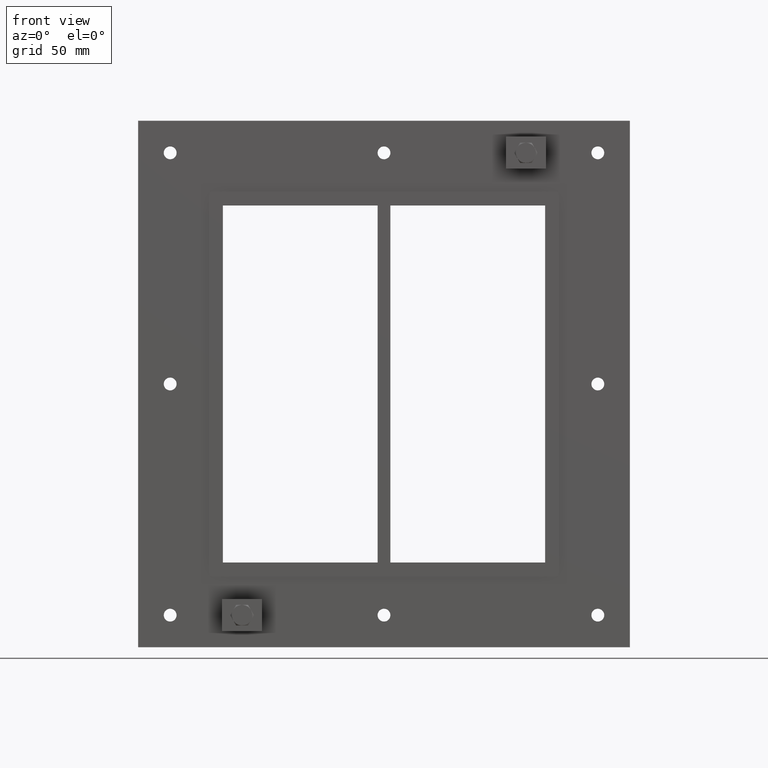
[diagram: clean part render]
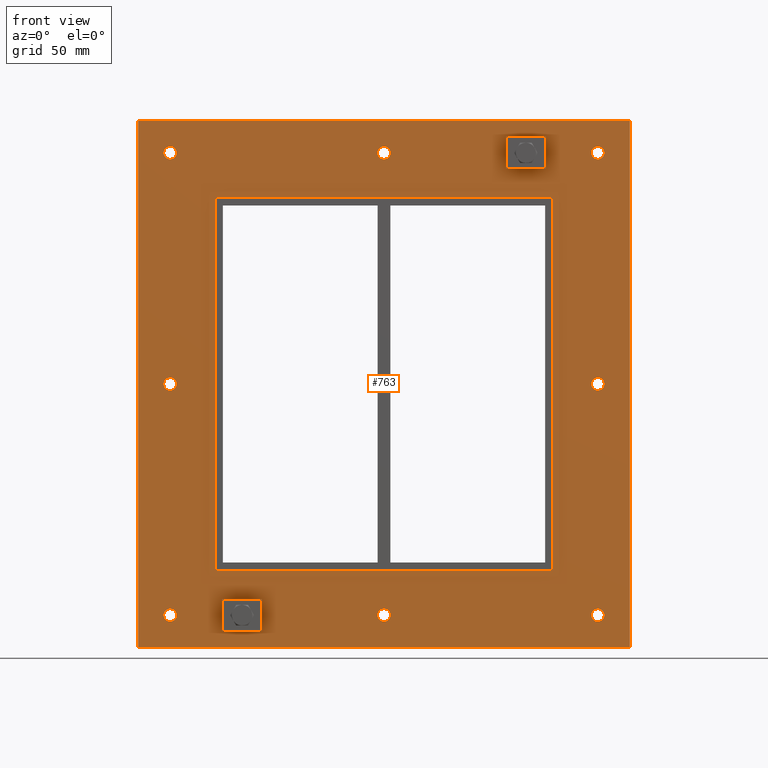
[diagram: same view with one face highlighted and labeled with its STEP entity id]
A machine part, front view. The second image highlights one B-rep face of the part: STEP entity #763.
In plain terms, the highlighted planar face has unit normal (0, 1, 0).
Its self-contained STEP definition (entity closure, byte-faithful):
#84=CARTESIAN_POINT('',(-161.5000000000002,0.0,-179.99999999999997));
#85=VERTEX_POINT('',#84);
#86=CARTESIAN_POINT('',(-166.5000000000002,0.0,-179.99999999999997));
#87=DIRECTION('',(0.0,1.0,0.0));
#88=DIRECTION('',(1.0,0.0,0.0));
#89=AXIS2_PLACEMENT_3D('',#86,#87,#88);
#90=CIRCLE('',#89,5.0);
#91=EDGE_CURVE('',#85,#85,#90,.T.);
#112=CARTESIAN_POINT('',(171.49999999999983,0.0,3.552714E-014));
#113=VERTEX_POINT('',#112);
#114=CARTESIAN_POINT('',(166.49999999999983,0.0,3.552714E-014));
#115=DIRECTION('',(0.0,1.0,0.0));
#116=DIRECTION('',(1.0,0.0,0.0));
#117=AXIS2_PLACEMENT_3D('',#114,#115,#116);
#118=CIRCLE('',#117,5.0);
#119=EDGE_CURVE('',#113,#113,#118,.T.);
#140=CARTESIAN_POINT('',(-161.5000000000002,0.0,3.552714E-014));
#141=VERTEX_POINT('',#140);
#142=CARTESIAN_POINT('',(-166.5000000000002,0.0,3.552714E-014));
#143=DIRECTION('',(0.0,1.0,0.0));
#144=DIRECTION('',(1.0,0.0,0.0));
#145=AXIS2_PLACEMENT_3D('',#142,#143,#144);
#146=CIRCLE('',#145,5.0);
#147=EDGE_CURVE('',#141,#141,#146,.T.);
#168=CARTESIAN_POINT('',(4.999999999999822,0.0,180.00000000000003));
#169=VERTEX_POINT('',#168);
#170=CARTESIAN_POINT('',(-1.776357E-013,0.0,180.00000000000003));
#171=DIRECTION('',(0.0,1.0,0.0));
#172=DIRECTION('',(1.0,0.0,0.0));
#173=AXIS2_PLACEMENT_3D('',#170,#171,#172);
#174=CIRCLE('',#173,5.0);
#175=EDGE_CURVE('',#169,#169,#174,.T.);
#196=CARTESIAN_POINT('',(4.999999999999822,0.0,-179.99999999999997));
#197=VERTEX_POINT('',#196);
#198=CARTESIAN_POINT('',(-1.776357E-013,0.0,-179.99999999999997));
#199=DIRECTION('',(0.0,1.0,0.0));
#200=DIRECTION('',(1.0,0.0,0.0));
#201=AXIS2_PLACEMENT_3D('',#198,#199,#200);
#202=CIRCLE('',#201,5.0);
#203=EDGE_CURVE('',#197,#197,#202,.T.);
#224=CARTESIAN_POINT('',(171.49999999999983,0.0,-179.99999999999997));
#225=VERTEX_POINT('',#224);
#226=CARTESIAN_POINT('',(166.49999999999983,0.0,-179.99999999999997));
#227=DIRECTION('',(0.0,1.0,0.0));
#228=DIRECTION('',(1.0,0.0,0.0));
#229=AXIS2_PLACEMENT_3D('',#226,#227,#228);
#230=CIRCLE('',#229,5.0);
#231=EDGE_CURVE('',#225,#225,#230,.T.);
#252=CARTESIAN_POINT('',(-161.5000000000002,0.0,180.00000000000003));
#253=VERTEX_POINT('',#252);
#254=CARTESIAN_POINT('',(-166.5000000000002,0.0,180.00000000000003));
#255=DIRECTION('',(0.0,1.0,0.0));
#256=DIRECTION('',(1.0,0.0,0.0));
#257=AXIS2_PLACEMENT_3D('',#254,#255,#256);
#258=CIRCLE('',#257,5.0);
#259=EDGE_CURVE('',#253,#253,#258,.T.);
#280=CARTESIAN_POINT('',(171.49999999999983,0.0,180.00000000000003));
#281=VERTEX_POINT('',#280);
#282=CARTESIAN_POINT('',(166.49999999999983,0.0,180.00000000000003));
#283=DIRECTION('',(0.0,1.0,0.0));
#284=DIRECTION('',(1.0,0.0,0.0));
#285=AXIS2_PLACEMENT_3D('',#282,#283,#284);
#286=CIRCLE('',#285,5.0);
#287=EDGE_CURVE('',#281,#281,#286,.T.);
#630=CARTESIAN_POINT('',(0.0,0.0,1.993641E-014));
#631=DIRECTION('',(0.0,1.0,0.0));
#632=DIRECTION('',(0.0,0.0,1.0));
#633=AXIS2_PLACEMENT_3D('',#630,#631,#632);
#634=PLANE('',#633);
#635=CARTESIAN_POINT('',(-191.50000000000006,0.0,205.0));
#636=VERTEX_POINT('',#635);
#637=CARTESIAN_POINT('',(191.50000000000006,0.0,205.0));
#638=VERTEX_POINT('',#637);
#639=CARTESIAN_POINT('',(-191.50000000000006,0.0,205.0));
#640=DIRECTION('',(1.0,0.0,0.0));
#641=VECTOR('',#640,383.00000000000011);
#642=LINE('',#639,#641);
#643=EDGE_CURVE('',#636,#638,#642,.T.);
#644=ORIENTED_EDGE('',*,*,#643,.F.);
#645=CARTESIAN_POINT('',(-191.50000000000006,0.0,-204.99999999999997));
#646=VERTEX_POINT('',#645);
#647=CARTESIAN_POINT('',(-191.50000000000006,0.0,-204.99999999999997));
#648=DIRECTION('',(0.0,0.0,1.0));
#649=VECTOR('',#648,410.0);
#650=LINE('',#647,#649);
#651=EDGE_CURVE('',#646,#636,#650,.T.);
#652=ORIENTED_EDGE('',*,*,#651,.F.);
#653=CARTESIAN_POINT('',(191.50000000000006,0.0,-204.99999999999997));
#654=VERTEX_POINT('',#653);
#655=CARTESIAN_POINT('',(191.50000000000006,0.0,-204.99999999999997));
#656=DIRECTION('',(-1.0,0.0,0.0));
#657=VECTOR('',#656,383.00000000000011);
#658=LINE('',#655,#657);
#659=EDGE_CURVE('',#654,#646,#658,.T.);
#660=ORIENTED_EDGE('',*,*,#659,.F.);
#661=CARTESIAN_POINT('',(191.50000000000006,0.0,205.0));
#662=DIRECTION('',(0.0,0.0,-1.0));
#663=VECTOR('',#662,410.0);
#664=LINE('',#661,#663);
#665=EDGE_CURVE('',#638,#654,#664,.T.);
#666=ORIENTED_EDGE('',*,*,#665,.F.);
#667=EDGE_LOOP('',(#644,#652,#660,#666));
#668=FACE_OUTER_BOUND('',#667,.T.);
#669=ORIENTED_EDGE('',*,*,#91,.T.);
#670=EDGE_LOOP('',(#669));
#671=FACE_BOUND('',#670,.T.);
#672=ORIENTED_EDGE('',*,*,#119,.T.);
#673=EDGE_LOOP('',(#672));
#674=FACE_BOUND('',#673,.T.);
#675=ORIENTED_EDGE('',*,*,#147,.T.);
#676=EDGE_LOOP('',(#675));
#677=FACE_BOUND('',#676,.T.);
#678=ORIENTED_EDGE('',*,*,#175,.T.);
#679=EDGE_LOOP('',(#678));
#680=FACE_BOUND('',#679,.T.);
#681=ORIENTED_EDGE('',*,*,#203,.T.);
#682=EDGE_LOOP('',(#681));
#683=FACE_BOUND('',#682,.T.);
#684=ORIENTED_EDGE('',*,*,#231,.T.);
#685=EDGE_LOOP('',(#684));
#686=FACE_BOUND('',#685,.T.);
#687=ORIENTED_EDGE('',*,*,#259,.T.);
#688=EDGE_LOOP('',(#687));
#689=FACE_BOUND('',#688,.T.);
#690=ORIENTED_EDGE('',*,*,#287,.T.);
#691=EDGE_LOOP('',(#690));
#692=FACE_BOUND('',#691,.T.);
#693=CARTESIAN_POINT('',(-129.50000000000003,0.0,145.0));
#694=VERTEX_POINT('',#693);
#695=CARTESIAN_POINT('',(-131.50000000000003,0.0,143.0));
#696=VERTEX_POINT('',#695);
#697=CARTESIAN_POINT('',(-129.50000000000003,0.0,143.0));
#698=DIRECTION('',(0.0,-1.0,0.0));
#699=DIRECTION('',(-0.707106781186548,0.0,0.707106781186548));
#700=AXIS2_PLACEMENT_3D('',#697,#698,#699);
#701=CIRCLE('',#700,2.0);
#702=EDGE_CURVE('',#694,#696,#701,.T.);
#703=ORIENTED_EDGE('',*,*,#702,.F.);
#704=CARTESIAN_POINT('',(129.5,0.0,145.0));
#705=VERTEX_POINT('',#704);
#706=CARTESIAN_POINT('',(129.5,0.0,145.0));
#707=DIRECTION('',(-1.0,0.0,0.0));
#708=VECTOR('',#707,259.0);
#709=LINE('',#706,#708);
#710=EDGE_CURVE('',#705,#694,#709,.T.);
#711=ORIENTED_EDGE('',*,*,#710,.F.);
#712=CARTESIAN_POINT('',(131.5,0.0,143.0));
#713=VERTEX_POINT('',#712);
#714=CARTESIAN_POINT('',(129.5,0.0,143.0));
#715=DIRECTION('',(0.0,-1.0,0.0));
#716=DIRECTION('',(0.707106781186548,0.0,0.707106781186548));
#717=AXIS2_PLACEMENT_3D('',#714,#715,#716);
#718=CIRCLE('',#717,2.0);
#719=EDGE_CURVE('',#713,#705,#718,.T.);
#720=ORIENTED_EDGE('',*,*,#719,.F.);
#721=CARTESIAN_POINT('',(131.5,0.0,-143.0));
#722=VERTEX_POINT('',#721);
#723=CARTESIAN_POINT('',(131.5,0.0,-143.0));
#724=DIRECTION('',(0.0,0.0,1.0));
#725=VECTOR('',#724,286.0);
#726=LINE('',#723,#725);
#727=EDGE_CURVE('',#722,#713,#726,.T.);
#728=ORIENTED_EDGE('',*,*,#727,.F.);
#729=CARTESIAN_POINT('',(129.5,0.0,-145.0));
#730=VERTEX_POINT('',#729);
#731=CARTESIAN_POINT('',(129.5,0.0,-143.0));
#732=DIRECTION('',(0.0,-1.0,0.0));
#733=DIRECTION('',(0.707106781186548,0.0,-0.707106781186548));
#734=AXIS2_PLACEMENT_3D('',#731,#732,#733);
#735=CIRCLE('',#734,2.0);
#736=EDGE_CURVE('',#730,#722,#735,.T.);
#737=ORIENTED_EDGE('',*,*,#736,.F.);
#738=CARTESIAN_POINT('',(-129.50000000000003,0.0,-145.0));
#739=VERTEX_POINT('',#738);
#740=CARTESIAN_POINT('',(-129.50000000000003,0.0,-145.0));
#741=DIRECTION('',(1.0,0.0,0.0));
#742=VECTOR('',#741,259.0);
#743=LINE('',#740,#742);
#744=EDGE_CURVE('',#739,#730,#743,.T.);
#745=ORIENTED_EDGE('',*,*,#744,.F.);
#746=CARTESIAN_POINT('',(-131.50000000000003,0.0,-143.0));
#747=VERTEX_POINT('',#746);
#748=CARTESIAN_POINT('',(-129.50000000000003,0.0,-143.0));
#749=DIRECTION('',(0.0,-1.0,0.0));
#750=DIRECTION('',(-0.707106781186548,0.0,-0.707106781186548));
#751=AXIS2_PLACEMENT_3D('',#748,#749,#750);
#752=CIRCLE('',#751,2.0);
#753=EDGE_CURVE('',#747,#739,#752,.T.);
#754=ORIENTED_EDGE('',*,*,#753,.F.);
#755=CARTESIAN_POINT('',(-131.50000000000003,0.0,143.0));
#756=DIRECTION('',(0.0,0.0,-1.0));
#757=VECTOR('',#756,286.0);
#758=LINE('',#755,#757);
#759=EDGE_CURVE('',#696,#747,#758,.T.);
#760=ORIENTED_EDGE('',*,*,#759,.F.);
#761=EDGE_LOOP('',(#703,#711,#720,#728,#737,#745,#754,#760));
#762=FACE_BOUND('',#761,.T.);
#763=ADVANCED_FACE('',(#668,#671,#674,#677,#680,#683,#686,#689,#692,#762),#634,.F.);